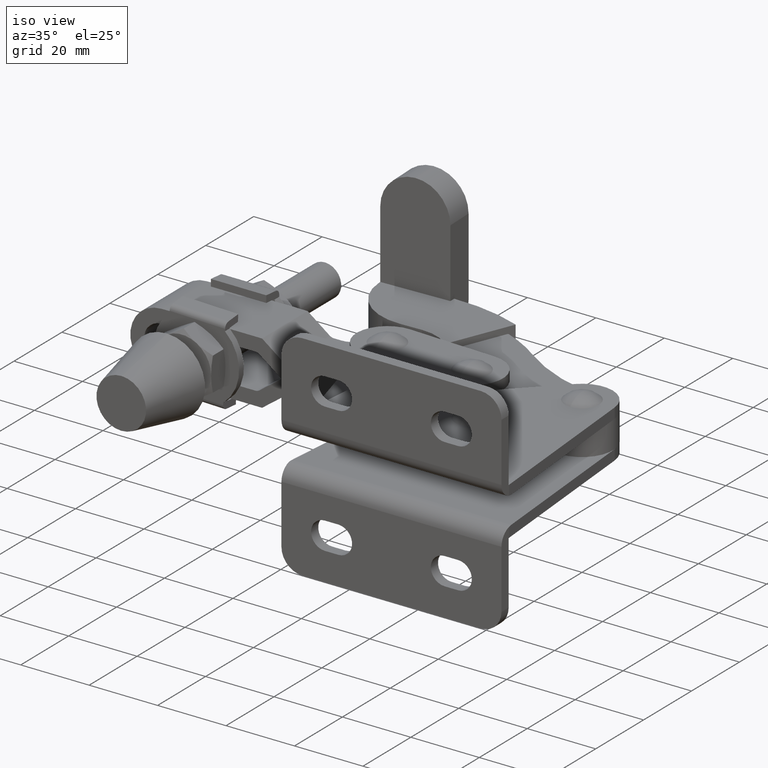
[diagram: clean part render]
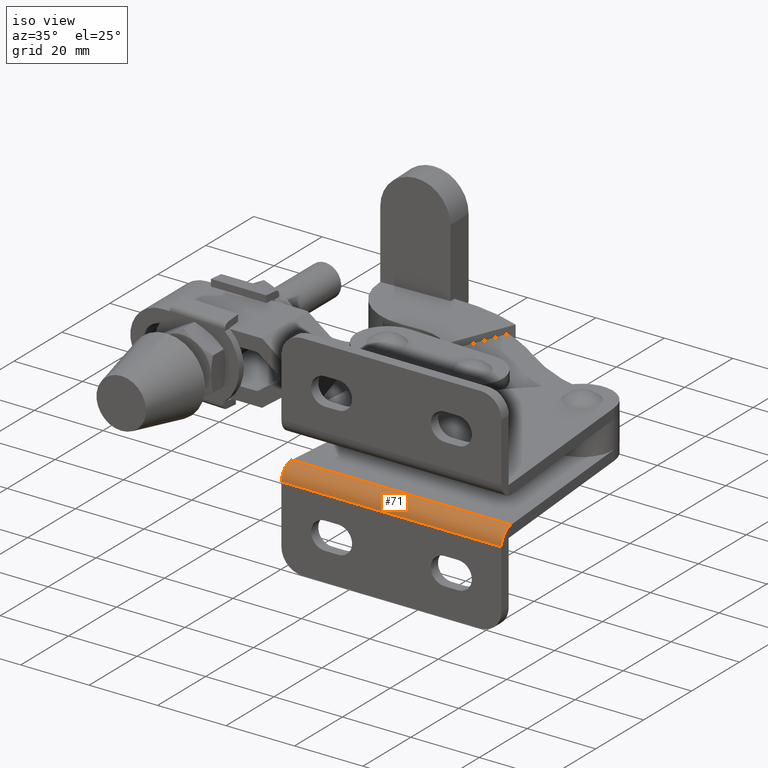
[diagram: same view with one face highlighted and labeled with its STEP entity id]
A machine part, iso view. The second image highlights one B-rep face of the part: STEP entity #71.
In plain terms, the highlighted cylindrical surface (edge-blend (fillet) strip) has radius 4.2 mm, axis along (1, -0, 0).
Its self-contained STEP definition (entity closure, byte-faithful):
#71 = ADVANCED_FACE ( 'NONE', ( #111 ), #4509, .T. ) ;
#111 = FACE_OUTER_BOUND ( 'NONE', #9618, .T. ) ;
#464 = CARTESIAN_POINT ( 'NONE',  ( -18.78493261757664700, -48.50000000000005700, -8.000000000000007100 ) ) ;
#711 = CARTESIAN_POINT ( 'NONE',  ( -50.84744395405078900, -48.50000000000005700, -8.000000000000007100 ) ) ;
#956 = CARTESIAN_POINT ( 'NONE',  ( 13.33639940129674400, -49.17232347630773900, -8.040456072373210400 ) ) ;
#1358 = ORIENTED_EDGE ( 'NONE', *, *, #7030, .T. ) ;
#1650 = CARTESIAN_POINT ( 'NONE',  ( -50.93493261757669900, -49.50000000000007100, -8.120784389125788000 ) ) ;
#1765 = VERTEX_POINT ( 'NONE', #10807 ) ;
#1792 = VERTEX_POINT ( 'NONE', #7075 ) ;
#1849 = CARTESIAN_POINT ( 'NONE',  ( 13.36506738242340700, -48.50000000000005700, -12.19999999999997300 ) ) ;
#2001 =( BOUNDED_CURVE ( )  B_SPLINE_CURVE ( 3, ( #711, #6277, #7210, #1650 ),
 .UNSPECIFIED., .F., .F. ) 
 B_SPLINE_CURVE_WITH_KNOTS ( ( 4, 4 ),
 ( 1.570796326794899900, 1.811200543564165200 ),
 .UNSPECIFIED. ) 
 CURVE ( )  GEOMETRIC_REPRESENTATION_ITEM ( )  RATIONAL_B_SPLINE_CURVE ( ( 1.000000000000000000, 0.9951896138241140800, 0.9951896138241140800, 1.000000000000000000 ) ) 
 REPRESENTATION_ITEM ( '' )  );
#2511 = ORIENTED_EDGE ( 'NONE', *, *, #5269, .T. ) ;
#2624 = VERTEX_POINT ( 'NONE', #8505 ) ;
#2737 = VERTEX_POINT ( 'NONE', #3224 ) ;
#2775 = DIRECTION ( 'NONE',  ( 0.0000000000000000000, 1.000000000000000000, 8.260587980842002900E-016 ) ) ;
#3046 = VERTEX_POINT ( 'NONE', #10176 ) ;
#3166 = LINE ( 'NONE', #4611, #10298 ) ;
#3224 = CARTESIAN_POINT ( 'NONE',  ( 13.36506738242340700, -52.70000000000002400, -12.19999999999998200 ) ) ;
#3778 = CARTESIAN_POINT ( 'NONE',  ( 13.27757871889746100, -48.50000000000005700, -8.000000000000007100 ) ) ;
#4509 = CYLINDRICAL_SURFACE ( 'NONE', #10454, 4.199999999999967300 ) ;
#4611 = CARTESIAN_POINT ( 'NONE',  ( -18.78493261757664700, -52.70000000000002400, -12.19999999999998900 ) ) ;
#4797 = ORIENTED_EDGE ( 'NONE', *, *, #4875, .T. ) ;
#4875 = EDGE_CURVE ( 'NONE', #5465, #2737, #3166, .T. ) ;
#5269 = EDGE_CURVE ( 'NONE', #3046, #5465, #5902, .T. ) ;
#5374 = DIRECTION ( 'NONE',  ( 1.000000000000000000, -2.065146995210500700E-016, 0.0000000000000000000 ) ) ;
#5425 = CIRCLE ( 'NONE', #8842, 4.199999999999967300 ) ;
#5465 = VERTEX_POINT ( 'NONE', #12102 ) ;
#5792 =( BOUNDED_CURVE ( )  B_SPLINE_CURVE ( 3, ( #8339, #956, #9329, #3778 ),
 .UNSPECIFIED., .F., .F. ) 
 B_SPLINE_CURVE_WITH_KNOTS ( ( 4, 4 ),
 ( 1.330392110025624900, 1.570796326794896600 ),
 .UNSPECIFIED. ) 
 CURVE ( )  GEOMETRIC_REPRESENTATION_ITEM ( )  RATIONAL_B_SPLINE_CURVE ( ( 1.000000000000000000, 0.9951896138241137500, 0.9951896138241137500, 1.000000000000000000 ) ) 
 REPRESENTATION_ITEM ( '' )  );
#5902 = CIRCLE ( 'NONE', #9535, 4.199999999999967300 ) ;
#6277 = CARTESIAN_POINT ( 'NONE',  ( -50.87696078576986000, -48.83737893036087700, -8.000000000000008900 ) ) ;
#6385 = DIRECTION ( 'NONE',  ( 0.0000000000000000000, 1.000000000000000000, 0.0000000000000000000 ) ) ;
#6547 = ORIENTED_EDGE ( 'NONE', *, *, #8012, .T. ) ;
#6621 = LINE ( 'NONE', #464, #11312 ) ;
#6929 = EDGE_CURVE ( 'NONE', #2624, #3046, #2001, .T. ) ;
#6958 = DIRECTION ( 'NONE',  ( 1.000000000000000000, -0.0000000000000000000, -0.0000000000000000000 ) ) ;
#7030 = EDGE_CURVE ( 'NONE', #2737, #1765, #5425, .T. ) ;
#7075 = CARTESIAN_POINT ( 'NONE',  ( 13.27757871889746100, -48.50000000000005700, -8.000000000000007100 ) ) ;
#7210 = CARTESIAN_POINT ( 'NONE',  ( -50.90626463645004700, -49.17232347630772400, -8.040456072373212100 ) ) ;
#8012 = EDGE_CURVE ( 'NONE', #1765, #1792, #5792, .T. ) ;
#8335 = DIRECTION ( 'NONE',  ( -1.000000000000000000, 2.065146995210500700E-016, -0.0000000000000000000 ) ) ;
#8339 = CARTESIAN_POINT ( 'NONE',  ( 13.36506738242340800, -49.50000000000009900, -8.120784389125791600 ) ) ;
#8344 = EDGE_CURVE ( 'NONE', #2624, #1792, #6621, .T. ) ;
#8373 = ORIENTED_EDGE ( 'NONE', *, *, #8344, .F. ) ;
#8505 = CARTESIAN_POINT ( 'NONE',  ( -50.84744395405078900, -48.50000000000005700, -8.000000000000007100 ) ) ;
#8583 = ORIENTED_EDGE ( 'NONE', *, *, #6929, .T. ) ;
#8842 = AXIS2_PLACEMENT_3D ( 'NONE', #1849, #8335, #2775 ) ;
#9329 = CARTESIAN_POINT ( 'NONE',  ( 13.30709555061655400, -48.83737893036087700, -8.000000000000007100 ) ) ;
#9535 = AXIS2_PLACEMENT_3D ( 'NONE', #10959, #5374, #11914 ) ;
#9618 = EDGE_LOOP ( 'NONE', ( #6547, #8373, #8583, #2511, #4797, #1358 ) ) ;
#10032 = DIRECTION ( 'NONE',  ( 1.000000000000000000, -2.065146995210500700E-016, 0.0000000000000000000 ) ) ;
#10176 = CARTESIAN_POINT ( 'NONE',  ( -50.93493261757669900, -49.50000000000007100, -8.120784389125788000 ) ) ;
#10298 = VECTOR ( 'NONE', #12074, 1000.000000000000000 ) ;
#10454 = AXIS2_PLACEMENT_3D ( 'NONE', #12040, #10032, #6385 ) ;
#10807 = CARTESIAN_POINT ( 'NONE',  ( 13.36506738242340800, -49.50000000000009900, -8.120784389125791600 ) ) ;
#10959 = CARTESIAN_POINT ( 'NONE',  ( -50.93493261757669900, -48.50000000000004300, -12.19999999999997300 ) ) ;
#11312 = VECTOR ( 'NONE', #6958, 1000.000000000000000 ) ;
#11914 = DIRECTION ( 'NONE',  ( 0.0000000000000000000, 1.000000000000000000, 0.0000000000000000000 ) ) ;
#12040 = CARTESIAN_POINT ( 'NONE',  ( 13.36506738242341000, -48.50000000000005700, -12.19999999999997300 ) ) ;
#12074 = DIRECTION ( 'NONE',  ( 1.000000000000000000, -0.0000000000000000000, -0.0000000000000000000 ) ) ;
#12102 = CARTESIAN_POINT ( 'NONE',  ( -50.93493261757669900, -52.70000000000002400, -12.19999999999998200 ) ) ;